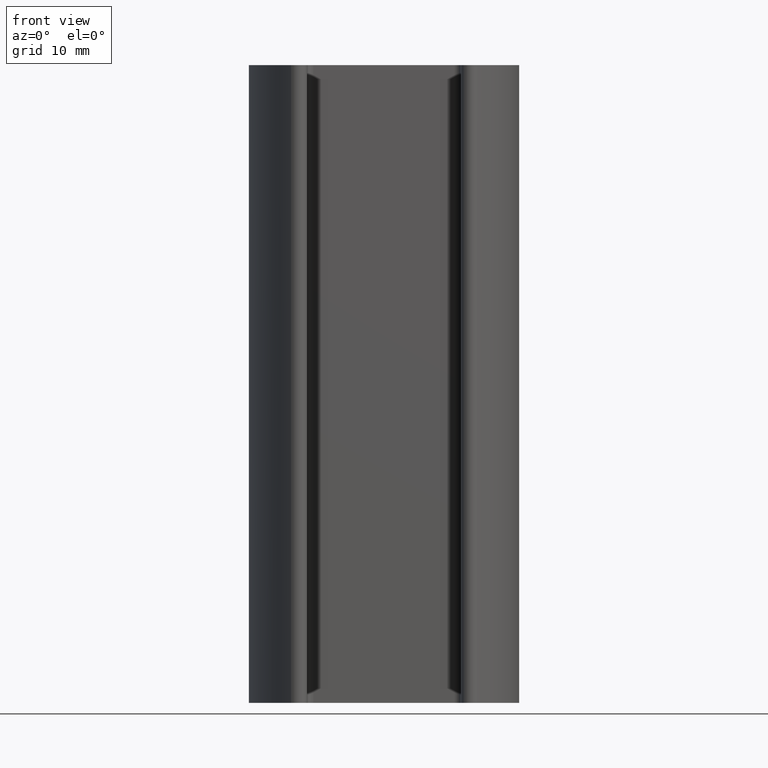
[diagram: clean part render]
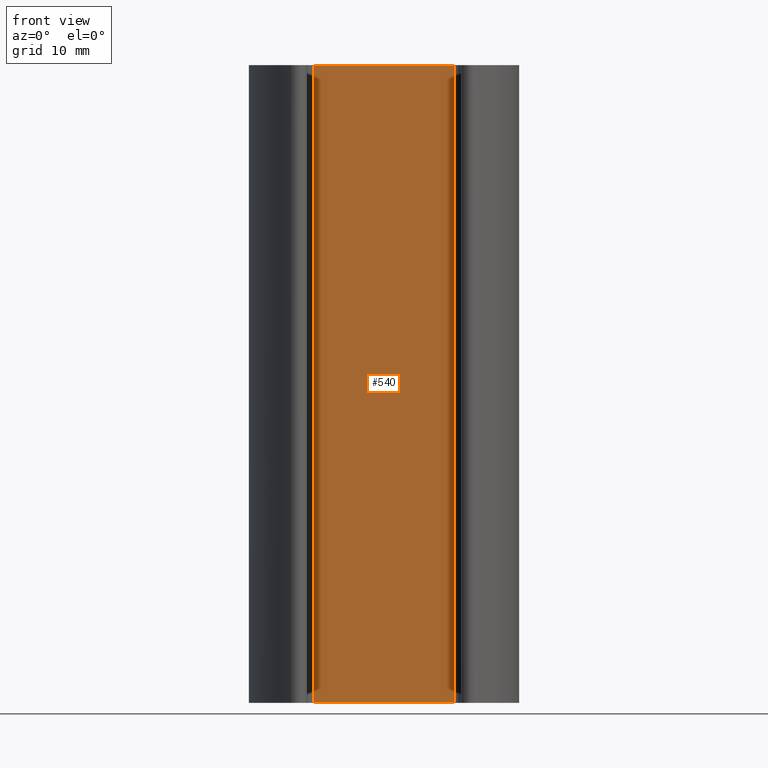
[diagram: same view with one face highlighted and labeled with its STEP entity id]
A machine part, front view. The second image highlights one B-rep face of the part: STEP entity #540.
In plain terms, the highlighted planar face has unit normal (0, 1, 0).
Its self-contained STEP definition (entity closure, byte-faithful):
#24=PLANE('',#585);
#54=LINE('',#808,#116);
#55=LINE('',#812,#117);
#56=LINE('',#814,#118);
#57=LINE('',#816,#119);
#116=VECTOR('',#653,1000.);
#117=VECTOR('',#658,1000.);
#118=VECTOR('',#659,1000.);
#119=VECTOR('',#660,1000.);
#188=ORIENTED_EDGE('',*,*,#339,.T.);
#189=ORIENTED_EDGE('',*,*,#340,.F.);
#190=ORIENTED_EDGE('',*,*,#341,.F.);
#191=ORIENTED_EDGE('',*,*,#337,.T.);
#337=EDGE_CURVE('',#411,#410,#54,.T.);
#339=EDGE_CURVE('',#410,#412,#55,.T.);
#340=EDGE_CURVE('',#413,#412,#56,.T.);
#341=EDGE_CURVE('',#411,#413,#57,.T.);
#410=VERTEX_POINT('',#807);
#411=VERTEX_POINT('',#809);
#412=VERTEX_POINT('',#813);
#413=VERTEX_POINT('',#815);
#472=EDGE_LOOP('',(#188,#189,#190,#191));
#502=FACE_BOUND('',#472,.T.);
#540=ADVANCED_FACE('',(#502),#24,.F.);
#585=AXIS2_PLACEMENT_3D('',#811,#656,#657);
#653=DIRECTION('',(0.,0.,-1.));
#656=DIRECTION('',(7.84942749310747E-17,1.,0.));
#657=DIRECTION('',(-1.,7.84942749310747E-17,0.));
#658=DIRECTION('',(1.,-7.84942749310747E-17,0.));
#659=DIRECTION('',(0.,0.,-1.));
#660=DIRECTION('',(1.,-7.84942749310747E-17,0.));
#807=CARTESIAN_POINT('',(-11.0500000000004,-8.67361737988404E-16,-50.));
#808=CARTESIAN_POINT('',(-11.0500000000004,-8.67361737988404E-16,50.));
#809=CARTESIAN_POINT('',(-11.0500000000004,-8.67361737988404E-16,50.));
#811=CARTESIAN_POINT('',(-11.0500000000004,0.,50.));
#812=CARTESIAN_POINT('',(-11.0500000000004,0.,-50.));
#813=CARTESIAN_POINT('',(11.0500000000004,-1.73472347597681E-15,-50.));
#814=CARTESIAN_POINT('',(11.0500000000004,-1.73472347597681E-15,50.));
#815=CARTESIAN_POINT('',(11.0500000000004,-1.73472347597681E-15,50.));
#816=CARTESIAN_POINT('',(-11.0500000000004,0.,50.));